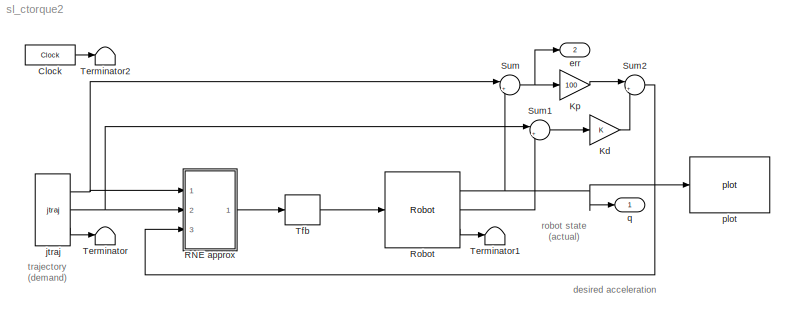
MODEL sl_ctorque2
KIND model
CONFIG PreLoadFcn = puma560\np560 = nofriction(p560);
BLOCK [Clock] Clock
  Decimation = 10
  DisplayTime = on
  SID = 30
BLOCK [Gain] Kd
  SID = 2
BLOCK [Gain] Kp
  Gain = 100
  SID = 3
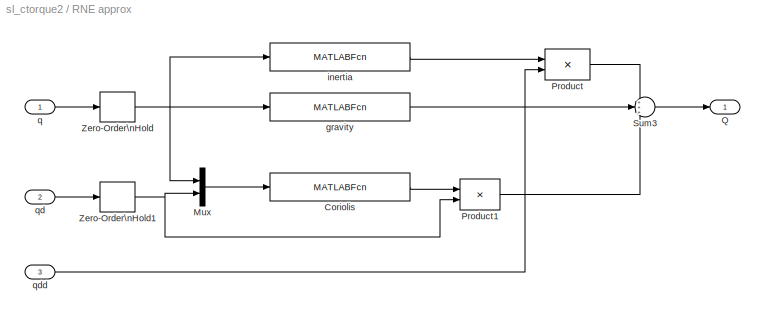
BLOCK [SubSystem] RNE approx
  FunctionWithSeparateData = off
  MaskCallbackString = |
  MaskEnableString = on,on
  MaskHideContents = off
  MaskIconFrame = on
  MaskIconOpaque = on
  MaskIconRotate = none
  MaskIconUnits = autoscale
  MaskPortRotate = default
  MaskPromptString = Robot|Sample interval (s)
  MaskStyleString = edit,edit
  MaskToolTipString = on,on
  MaskTunableValueString = on,on
  MaskValueString = p560|0.05
  MaskVariables = robot=@1;ts=@2;
  MaskVisibilityString = on,on
  MinAlgLoopOccurrences = off
  Opaque = off
  Ports = [3, 1]
  PropExecContextOutsideSubsystem = off
  RTWSystemCode = Auto
  RequestExecContextInheritance = off
  SID = 53
BLOCK [MATLABFcn] RNE approx/Coriolis
  MATLABFcn = robot.coriolis(u')
  Output1D = off
  OutputDimensions = [robot.n robot.n]
  Ports = [1, 1]
  SID = 51
BLOCK [Mux] RNE approx/Mux
  DisplayOption = bar
  Inputs = 2
  Ports = [2, 1]
  SID = 41
BLOCK [Product] RNE approx/Product
  InputSameDT = off
  Multiplication = Matrix(*)
  OutDataTypeStr = Inherit: Inherit via internal rule
  Ports = [2, 1]
  SID = 42
  SaturateOnIntegerOverflow = off
BLOCK [Product] RNE approx/Product1
  InputSameDT = off
  Multiplication = Matrix(*)
  OutDataTypeStr = Inherit: Inherit via internal rule
  Ports = [2, 1]
  SID = 43
  SaturateOnIntegerOverflow = off
BLOCK [Outport] RNE approx/Q
  IconDisplay = Port number
  SID = 55
BLOCK [Sum] RNE approx/Sum3
  IconShape = round
  InputSameDT = off
  Inputs = +++
  OutDataTypeStr = Inherit: Inherit via internal rule
  Ports = [3, 1]
  SID = 47
  SaturateOnIntegerOverflow = off
BLOCK [ZeroOrderHold] RNE approx/Zero-Order\nHold
  SID = 49
  SampleTime = ts
BLOCK [ZeroOrderHold] RNE approx/Zero-Order\nHold1
  SID = 50
  SampleTime = ts
BLOCK [MATLABFcn] RNE approx/gravity
  MATLABFcn = robot.gravload(u')'
  Output1D = off
  Ports = [1, 1]
  SID = 40
BLOCK [MATLABFcn] RNE approx/inertia
  MATLABFcn = robot.inertia(u')
  Output1D = off
  OutputDimensions = [robot.n robot.n]
  Ports = [1, 1]
  SID = 52
BLOCK [Inport] RNE approx/q
  IconDisplay = Port number
  SID = 54
BLOCK [Inport] RNE approx/qd
  IconDisplay = Port number
  Port = 2
  SID = 56
BLOCK [Inport] RNE approx/qdd
  IconDisplay = Port number
  Port = 3
  SID = 57
BLOCK [Reference] Robot  REF=roblocks/Dynamics/Robot  (lib defined in mdl_2a292b13c81b, mdl_69400f8cfe22, +12 more)
  FunctionWithSeparateData = off
  GeneratePreprocessorConditionals = off
  Ports = [1, 3]
  RTWMemSecDataConstants = Inherit from model
  RTWMemSecDataInternal = Inherit from model
  RTWMemSecDataParameters = Inherit from model
  RTWMemSecFuncExecute = Inherit from model
  RTWMemSecFuncInitTerm = Inherit from model
  SID = 35
  ShowPortLabels = FromPortIcon
  SourceBlock = roblocks/Dynamics/Robot
  SystemSampleTime = -1
  q0 = [0 0 0 0 0 0]
  robot = p560.nofriction()
BLOCK [Sum] Sum
  IconShape = round
  Inputs = |+-
  Ports = [2, 1]
  SID = 7
BLOCK [Sum] Sum1
  IconShape = round
  Inputs = |+-
  Ports = [2, 1]
  SID = 8
BLOCK [Sum] Sum2
  IconShape = round
  Inputs = |++
  Ports = [2, 1]
  SID = 9
BLOCK [Terminator] Terminator
  SID = 10
BLOCK [Terminator] Terminator1
  SID = 11
BLOCK [Terminator] Terminator2
  SID = 36
BLOCK [ZeroOrderHold] Tfb
  SID = 27
  SampleTime = 0.01
BLOCK [Outport] err
  IconDisplay = Port number
  Port = 2
  SID = 31
BLOCK [Reference] jtraj  REF=roblocks/Trajectory/jtraj  (lib defined in mdl_2a292b13c81b, mdl_69400f8cfe22, +12 more)
  FunctionWithSeparateData = off
  GeneratePreprocessorConditionals = off
  Ports = [0, 3]
  RTWMemSecDataConstants = Inherit from model
  RTWMemSecDataInternal = Inherit from model
  RTWMemSecDataParameters = Inherit from model
  RTWMemSecFuncExecute = Inherit from model
  RTWMemSecFuncInitTerm = Inherit from model
  SID = 38
  ShowPortLabels = FromPortIcon
  SourceBlock = roblocks/Trajectory/jtraj
  SystemSampleTime = -1
  q0 = [0 0 0 0 0 0]
  qf = [pi/4 pi/2 -pi/2 0 0 0]
  tmax = 10
  ts = 0.02
BLOCK [Reference] plot  REF=roblocks/Robot Graphics/plot  (lib defined in mdl_2a292b13c81b, mdl_69400f8cfe22, +12 more)
  FunctionWithSeparateData = off
  GeneratePreprocessorConditionals = off
  Ports = [1]
  RTWMemSecDataConstants = Inherit from model
  RTWMemSecDataInternal = Inherit from model
  RTWMemSecDataParameters = Inherit from model
  RTWMemSecFuncExecute = Inherit from model
  RTWMemSecFuncInitTerm = Inherit from model
  SID = 39
  ShowPortLabels = FromPortIcon
  SourceBlock = roblocks/Robot Graphics/plot
  SystemSampleTime = -1
  fps = 25
  robot = p560
BLOCK [Outport] q
  IconDisplay = Port number
  SID = 28
ANNOTATION (root): desired acceleration
ANNOTATION (root): robot state\n(actual)
ANNOTATION (root): trajectory\n(demand)
LINE Clock:1 -> Terminator2:1
LINE Kd:1 -> Sum2:2
LINE Kp:1 -> Sum2:1
LINE RNE approx/Coriolis:1 -> RNE approx/Product1:1
LINE RNE approx/Mux:1 -> RNE approx/Coriolis:1
LINE RNE approx/Product1:1 -> RNE approx/Sum3:3
LINE RNE approx/Product:1 -> RNE approx/Sum3:1
LINE RNE approx/Sum3:1 -> RNE approx/Q:1
NET RNE approx/Zero-Order\nHold1:1 -> RNE approx/Mux:2, RNE approx/Product1:2
NET RNE approx/Zero-Order\nHold:1 -> RNE approx/Mux:1, RNE approx/gravity:1, RNE approx/inertia:1
LINE RNE approx/gravity:1 -> RNE approx/Sum3:2
LINE RNE approx/inertia:1 -> RNE approx/Product:1
LINE RNE approx/q:1 -> RNE approx/Zero-Order\nHold:1
LINE RNE approx/qd:1 -> RNE approx/Zero-Order\nHold1:1
LINE RNE approx/qdd:1 -> RNE approx/Product:2
LINE RNE approx:1 -> Tfb:1
NET Robot:1 -> Sum:2, plot:1, q:1
LINE Robot:2 -> Sum1:2
LINE Robot:3 -> Terminator1:1
LINE Sum1:1 -> Kd:1
LINE Sum2:1 -> RNE approx:3
NET Sum:1 -> Kp:1, err:1
LINE Tfb:1 -> Robot:1
NET jtraj:1 -> RNE approx:1, Sum:1
NET jtraj:2 -> RNE approx:2, Sum1:1
LINE jtraj:3 -> Terminator:1
note: NET lines group one-source signal fan-out (src -> all destinations, sorted); 1:1 wires keep LINE
